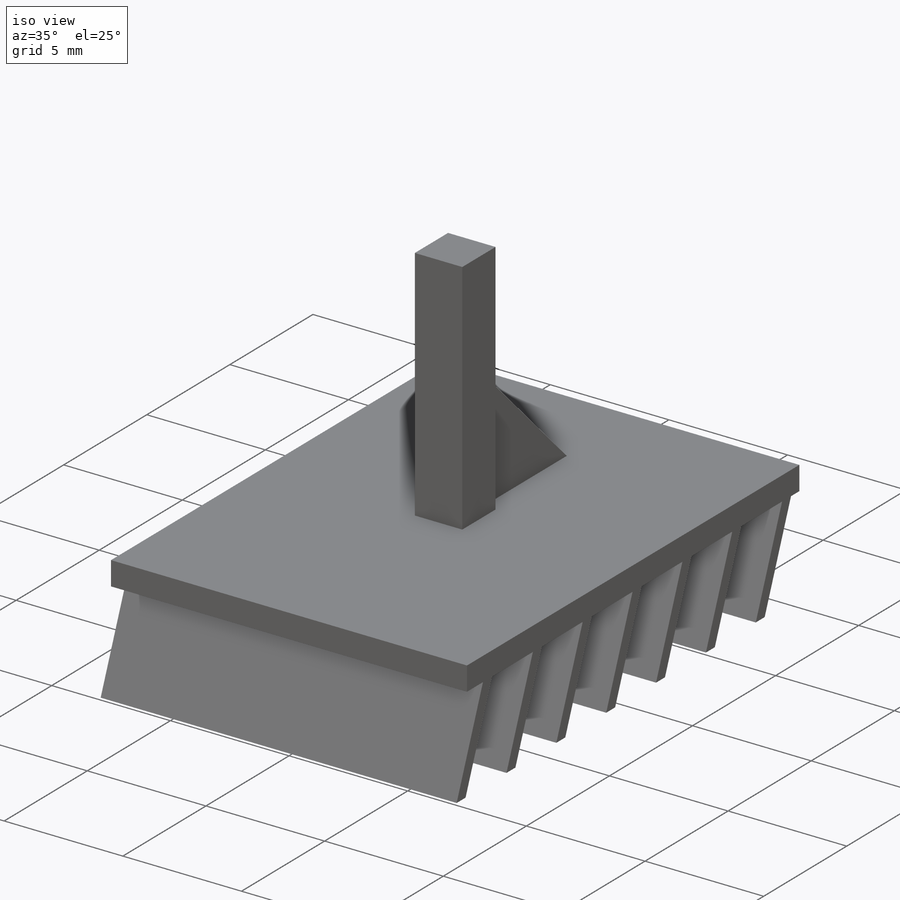
[diagram: iso view]
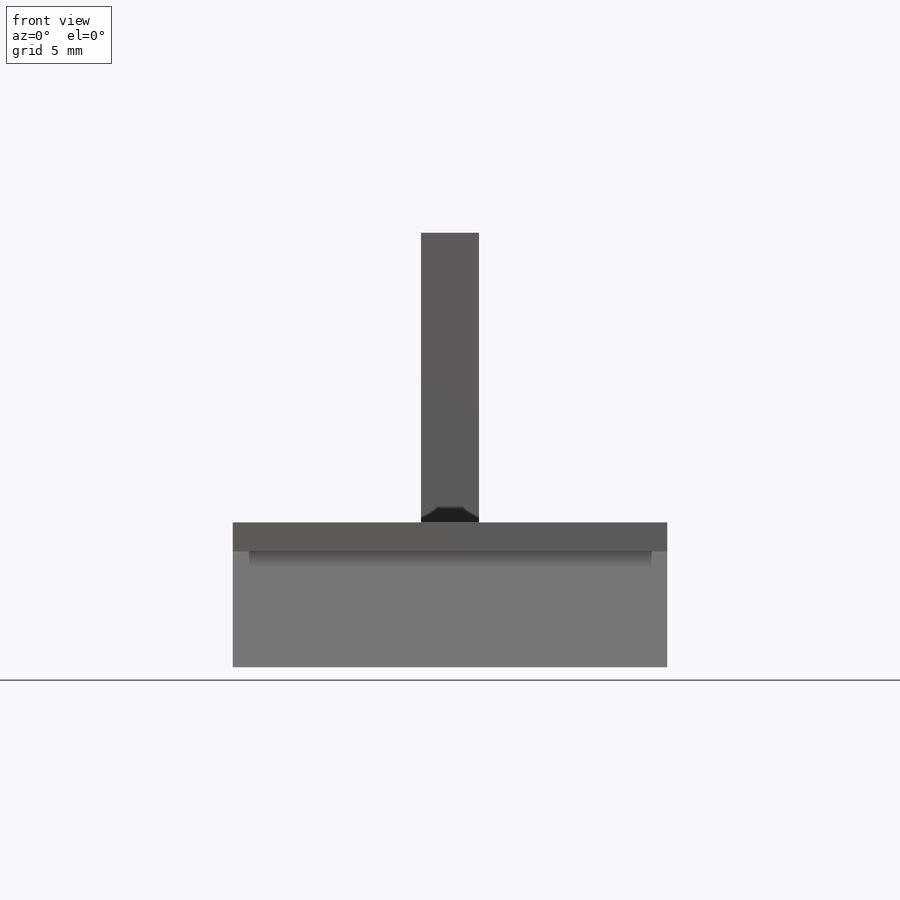
[diagram: front view]
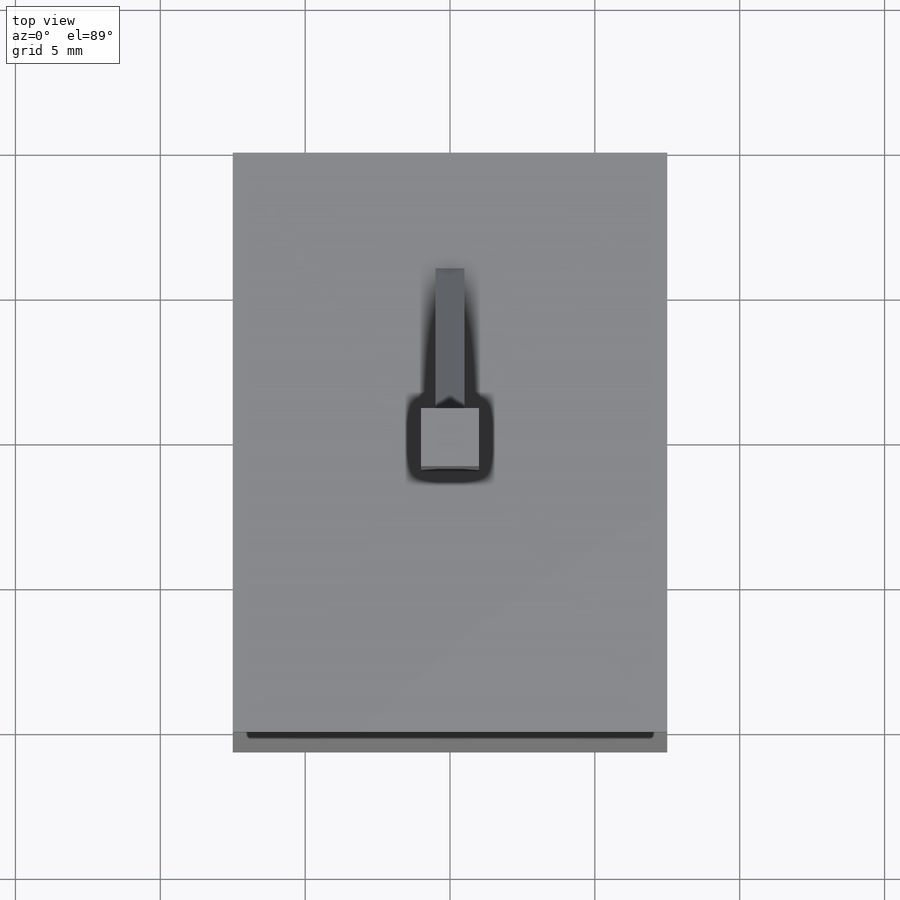
[diagram: top view]
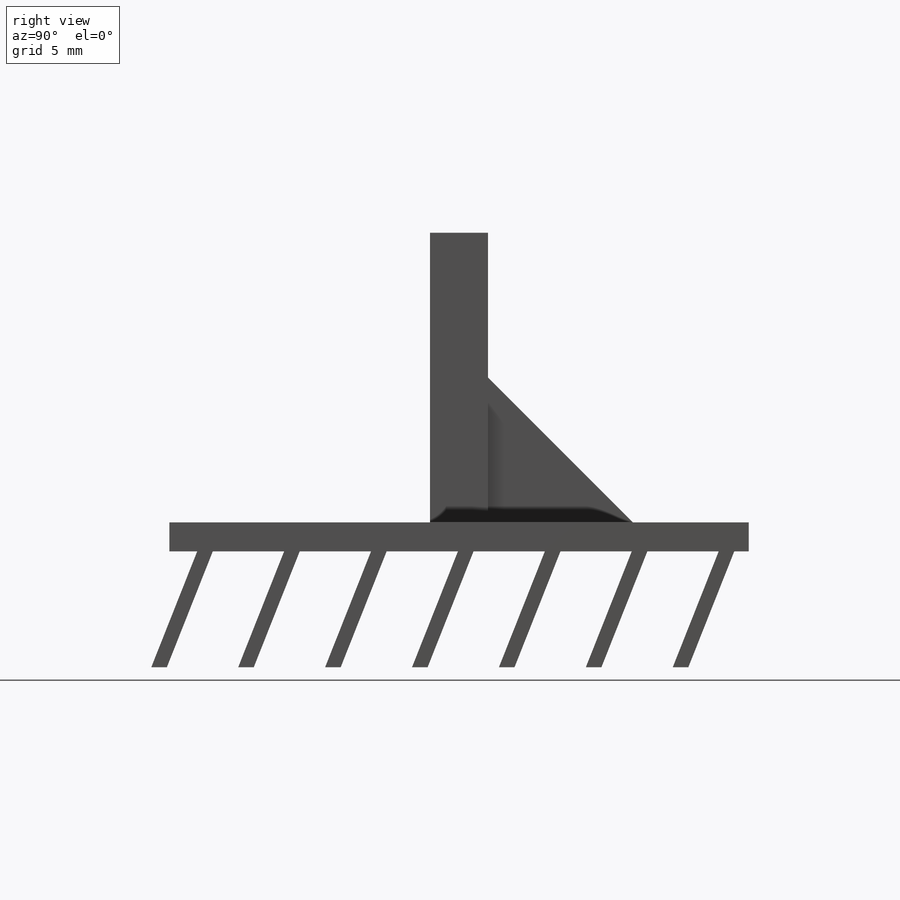
[diagram: right view]
SOLIDWORKS PART (.sldprt)
format: sldprt  version: not decoded by parser v0  size: 195,072 bytes
history: native  units: mm
features: sketch x4, extrude x4, plane x3, material x1, pattern_linear x1 (+8 scaffold rows collapsed)
feature tree (21):
  scaffold x8  (default folders/planes/origin — collapsed)
  material  "Matériau <non spécifié>"
  plane  "Plan de face"
  plane  "Plan de dessus"
  plane  "Plan de droite"
  sketch  "Esquisse1"  dims[c1.D1=~66.276279mm c2.D1=60.0deg c2.D2=~66.276279mm c3.D2=60.0deg c3.D3=10.0mm c3.D1=15.0mm c4.D2=1.0mm]
  extrude  "Boss.-Extru.1"  Depth=10mm
  sketch  "Esquisse2"  dims[c1.D1=~2.885039mm c2.D1=90.0deg c3.D1=2.0mm c3.D2=1.0mm c3.D3=10.0mm]
  extrude  "Boss.-Extru.2"  Depth=1mm
  sketch  "Esquisse3"  dims[c1.D1=~9.222641mm c2.D1=45.0deg c2.D2=5.0mm]
  extrude  "Boss.-Extru.3"  Depth=0.5mm
  sketch  "Esquisse4"  dims[D1=0.5mm D2=4.0mm D3=0.5mm]
  extrude  "Boss.-Extru.4"  [1 undecoded]
  pattern_linear  "Répétition linéaire1"  Count1=7 Count2=1 Spacing1=3mm Spacing2=10mm
decode coverage: 8 of 9 modeling features carry decoded parameters
note: ~ marks probable driven/reference dimensions
note: 1 parameter value undecoded
note: suppression state not decoded; provenance and decode notes live in map.json
